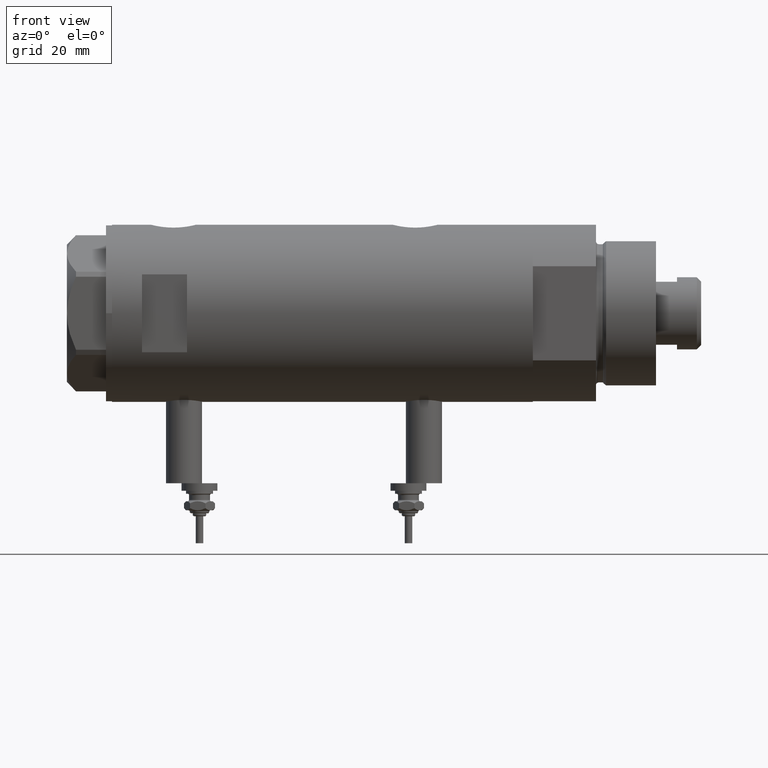
[diagram: clean part render]
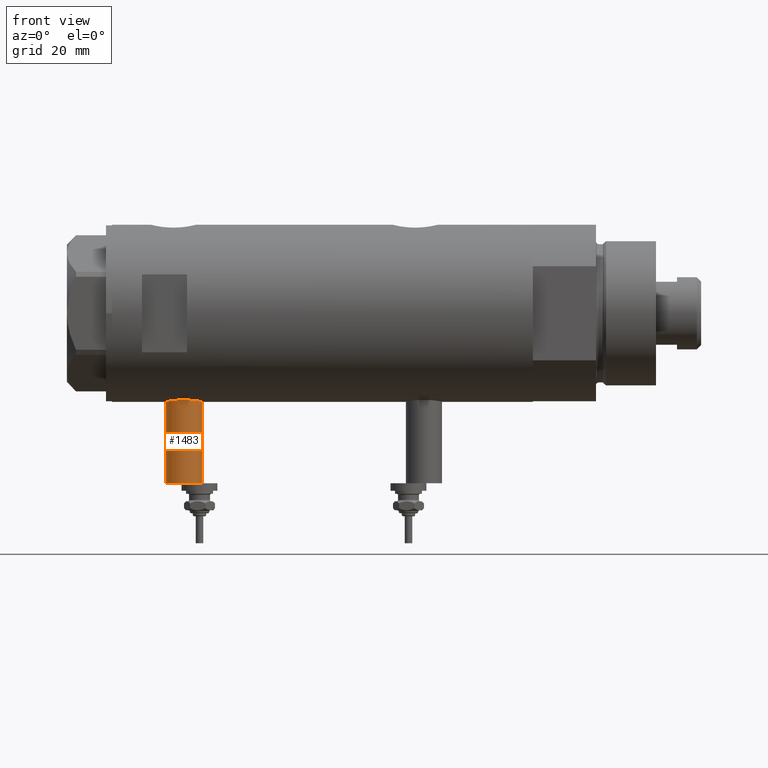
[diagram: same view with one face highlighted and labeled with its STEP entity id]
A machine part, front view. The second image highlights one B-rep face of the part: STEP entity #1483.
In plain terms, the highlighted cylindrical surface (edge-blend (fillet) strip) has radius 6 mm, axis along (0, 0, 1).
Its self-contained STEP definition (entity closure, byte-faithful):
#2 = VERTEX_POINT ( 'NONE', #5113 ) ;
#21 = DIRECTION ( 'NONE',  ( 0.000000000000000000, 0.000000000000000000, 1.000000000000000000 ) ) ;
#475 = AXIS2_PLACEMENT_3D ( 'NONE', #2925, #1242, #4318 ) ;
#572 = VECTOR ( 'NONE', #1835, 1000.000000000000000 ) ;
#849 = CARTESIAN_POINT ( 'NONE',  ( -28.30000000000000071, 0.000000000000000000, 46.09999999999999432 ) ) ;
#1113 = CARTESIAN_POINT ( 'NONE',  ( -56.60000000000000142, 7.347880794884112834E-16, 52.09999999999999432 ) ) ;
#1242 = DIRECTION ( 'NONE',  ( 1.000000000000000000, -0.000000000000000000, -0.000000000000000000 ) ) ;
#1294 = ORIENTED_EDGE ( 'NONE', *, *, #1663, .T. ) ;
#1357 = DIRECTION ( 'NONE',  ( -1.000000000000000000, 0.000000000000000000, 0.000000000000000000 ) ) ;
#1483 = ADVANCED_FACE ( 'NONE', ( #5736 ), #3023, .T. ) ;
#1520 = EDGE_CURVE ( 'NONE', #3135, #1879, #5303, .T. ) ;
#1663 = EDGE_CURVE ( 'NONE', #2, #1879, #1816, .T. ) ;
#1773 = ORIENTED_EDGE ( 'NONE', *, *, #1520, .F. ) ;
#1793 = CIRCLE ( 'NONE', #2819, 5.999999999999998224 ) ;
#1816 = CIRCLE ( 'NONE', #4878, 5.999999999999998224 ) ;
#1835 = DIRECTION ( 'NONE',  ( 1.000000000000000000, -0.000000000000000000, -0.000000000000000000 ) ) ;
#1879 = VERTEX_POINT ( 'NONE', #3730 ) ;
#2212 = CARTESIAN_POINT ( 'NONE',  ( -56.60000000000000142, 0.000000000000000000, 40.09999999999999432 ) ) ;
#2239 = VERTEX_POINT ( 'NONE', #2212 ) ;
#2575 = DIRECTION ( 'NONE',  ( 1.000000000000000000, -0.000000000000000000, -0.000000000000000000 ) ) ;
#2643 = DIRECTION ( 'NONE',  ( -1.000000000000000000, 0.000000000000000000, 0.000000000000000000 ) ) ;
#2677 = DIRECTION ( 'NONE',  ( 0.000000000000000000, 0.000000000000000000, 1.000000000000000000 ) ) ;
#2819 = AXIS2_PLACEMENT_3D ( 'NONE', #4921, #2643, #2677 ) ;
#2925 = CARTESIAN_POINT ( 'NONE',  ( -56.60000000000000142, 0.000000000000000000, 46.09999999999999432 ) ) ;
#3023 = CYLINDRICAL_SURFACE ( 'NONE', #475, 5.999999999999998224 ) ;
#3029 = EDGE_CURVE ( 'NONE', #2239, #2, #3283, .T. ) ;
#3135 = VERTEX_POINT ( 'NONE', #3448 ) ;
#3189 = ORIENTED_EDGE ( 'NONE', *, *, #3029, .T. ) ;
#3283 = LINE ( 'NONE', #5109, #572 ) ;
#3377 = ORIENTED_EDGE ( 'NONE', *, *, #5331, .F. ) ;
#3448 = CARTESIAN_POINT ( 'NONE',  ( -56.60000000000000142, 7.347880794884108889E-16, 52.09999999999999432 ) ) ;
#3630 = VECTOR ( 'NONE', #2575, 1000.000000000000000 ) ;
#3730 = CARTESIAN_POINT ( 'NONE',  ( -28.30000000000000071, 7.347880794884108889E-16, 52.09999999999999432 ) ) ;
#4318 = DIRECTION ( 'NONE',  ( 0.000000000000000000, 0.000000000000000000, -1.000000000000000000 ) ) ;
#4559 = EDGE_LOOP ( 'NONE', ( #1773, #3377, #3189, #1294 ) ) ;
#4878 = AXIS2_PLACEMENT_3D ( 'NONE', #849, #1357, #21 ) ;
#4921 = CARTESIAN_POINT ( 'NONE',  ( -56.60000000000000142, 0.000000000000000000, 46.09999999999999432 ) ) ;
#5109 = CARTESIAN_POINT ( 'NONE',  ( -56.60000000000000142, 0.000000000000000000, 40.09999999999999432 ) ) ;
#5113 = CARTESIAN_POINT ( 'NONE',  ( -28.30000000000000071, 0.000000000000000000, 40.09999999999999432 ) ) ;
#5303 = LINE ( 'NONE', #1113, #3630 ) ;
#5331 = EDGE_CURVE ( 'NONE', #2239, #3135, #1793, .T. ) ;
#5736 = FACE_OUTER_BOUND ( 'NONE', #4559, .T. ) ;